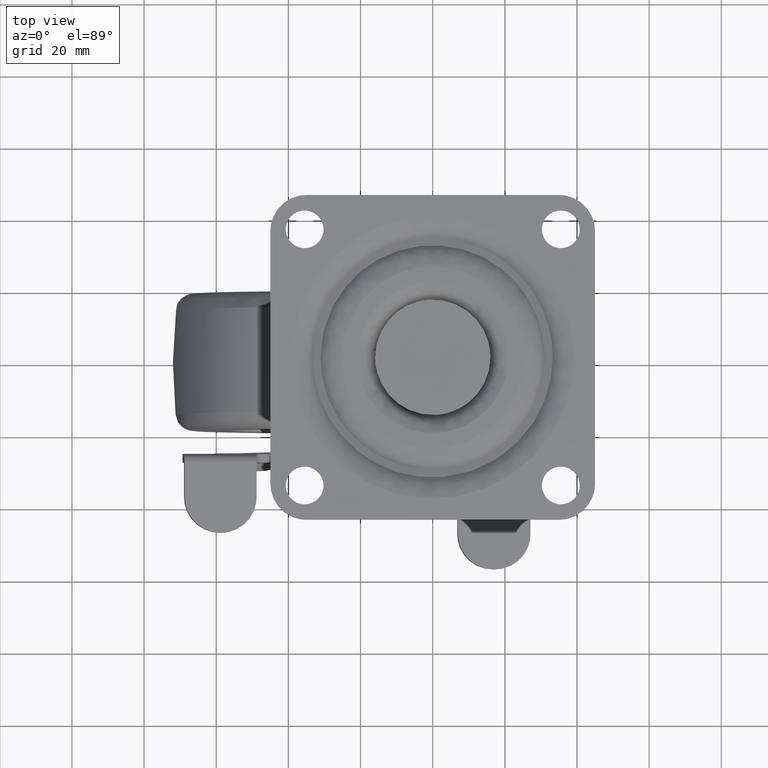
[diagram: clean part render]
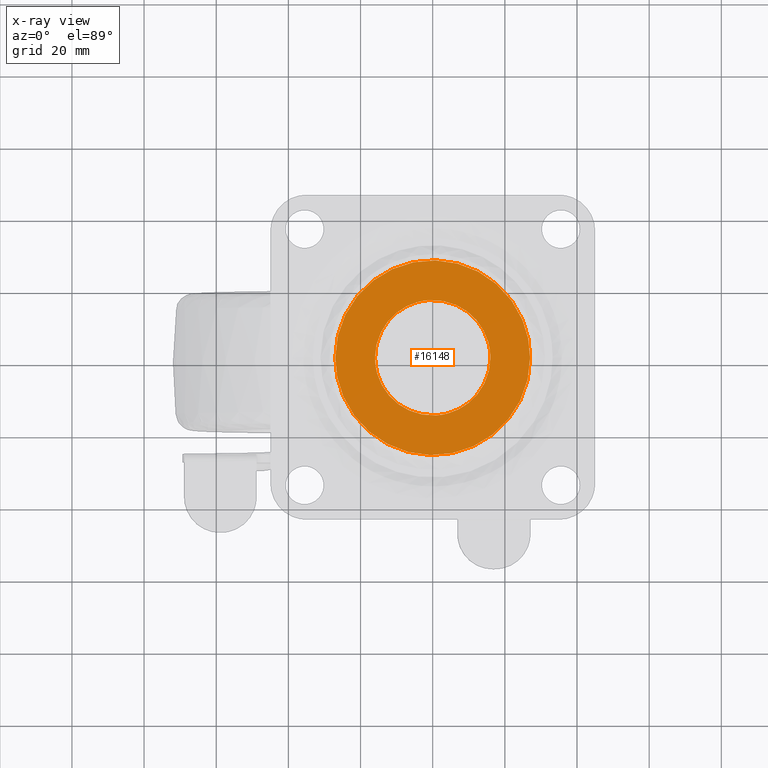
[diagram: x-ray — body ghosted, one internal face saturated and labeled with its STEP entity id]
A machine part, top view, then the same camera in x-ray: the body is ghosted and one INTERNAL B-rep face — a face not visible from any outside direction — is saturated and labeled: STEP entity #16148.
In plain terms, the highlighted face is a freeform B-spline surface patch.
Its self-contained STEP definition (entity closure, byte-faithful):
#15792=CARTESIAN_POINT('',(-0.976770151522309,15.970157171144340,-8.399999999999963));
#15793=VERTEX_POINT('',#15792);
#15794=CARTESIAN_POINT('',(16.0,0.0,-8.400000000000000));
#15795=VERTEX_POINT('',#15794);
#15796=CARTESIAN_POINT('',(-0.976770151522309,15.970157171144336,-8.399999999999961));
#15797=CARTESIAN_POINT('',(-0.488840963173646,15.999999999998701,-8.399999999999963));
#15798=CARTESIAN_POINT('',(7.832033E-014,15.999999999998719,-8.399999999999963));
#15799=CARTESIAN_POINT('',(16.000000000000039,15.999999999999376,-8.399999999999981));
#15800=CARTESIAN_POINT('',(16.0,0.0,-8.400000000000000));
#15808=(BOUNDED_CURVE()B_SPLINE_CURVE(2,(#15796,#15797,#15798,#15799,#15800),.UNSPECIFIED.,.F.,.U.)B_SPLINE_CURVE_WITH_KNOTS((3,2,3),(0.239333032265195,0.250000000000000,0.500000000000000),.UNSPECIFIED.)CURVE()GEOMETRIC_REPRESENTATION_ITEM()RATIONAL_B_SPLINE_CURVE((0.976072191746352,0.987502869940695,1.0,0.707106781186548,1.0))REPRESENTATION_ITEM(''));
#15809=EDGE_CURVE('',#15793,#15795,#15808,.T.);
#15818=CARTESIAN_POINT('',(0.976770151522307,-15.970157171144340,-8.399999999999963));
#15819=VERTEX_POINT('',#15818);
#15825=CARTESIAN_POINT('',(16.0,0.0,-8.400000000000000));
#15826=CARTESIAN_POINT('',(15.999999999999961,-15.051303190047920,-8.399999999999983));
#15827=CARTESIAN_POINT('',(0.976770151522307,-15.970157171144336,-8.399999999999961));
#15835=(BOUNDED_CURVE()B_SPLINE_CURVE(2,(#15825,#15826,#15827),.UNSPECIFIED.,.F.,.U.)B_SPLINE_CURVE_WITH_KNOTS((3,3),(0.500000000000000,0.739333032265195),.UNSPECIFIED.)CURVE()GEOMETRIC_REPRESENTATION_ITEM()RATIONAL_B_SPLINE_CURVE((1.0,0.719603911245852,0.976072191746352))REPRESENTATION_ITEM(''));
#15836=EDGE_CURVE('',#15795,#15819,#15835,.T.);
#15859=CARTESIAN_POINT('',(-16.0,0.0,-8.400000000000000));
#15860=VERTEX_POINT('',#15859);
#15861=CARTESIAN_POINT('',(-16.0,0.0,-8.400000000000000));
#15862=CARTESIAN_POINT('',(-15.999999999999961,15.051303190047920,-8.399999999999981));
#15863=CARTESIAN_POINT('',(-0.976770151522309,15.970157171144336,-8.399999999999961));
#15871=(BOUNDED_CURVE()B_SPLINE_CURVE(2,(#15861,#15862,#15863),.UNSPECIFIED.,.F.,.U.)B_SPLINE_CURVE_WITH_KNOTS((3,3),(0.0,0.239333032265195),.UNSPECIFIED.)CURVE()GEOMETRIC_REPRESENTATION_ITEM()RATIONAL_B_SPLINE_CURVE((1.0,0.719603911245852,0.976072191746352))REPRESENTATION_ITEM(''));
#15872=EDGE_CURVE('',#15860,#15793,#15871,.T.);
#15874=CARTESIAN_POINT('',(0.976770151522307,-15.970157171144336,-8.399999999999961));
#15875=CARTESIAN_POINT('',(0.488840963173643,-15.999999999998701,-8.399999999999965));
#15876=CARTESIAN_POINT('',(-8.262956E-014,-15.999999999998719,-8.399999999999965));
#15877=CARTESIAN_POINT('',(-16.000000000000039,-15.999999999999376,-8.399999999999984));
#15878=CARTESIAN_POINT('',(-16.0,0.0,-8.400000000000000));
#15886=(BOUNDED_CURVE()B_SPLINE_CURVE(2,(#15874,#15875,#15876,#15877,#15878),.UNSPECIFIED.,.F.,.U.)B_SPLINE_CURVE_WITH_KNOTS((3,2,3),(0.739333032265195,0.750000000000000,1.0),.UNSPECIFIED.)CURVE()GEOMETRIC_REPRESENTATION_ITEM()RATIONAL_B_SPLINE_CURVE((0.976072191746352,0.987502869940695,1.0,0.707106781186548,1.0))REPRESENTATION_ITEM(''));
#15887=EDGE_CURVE('',#15819,#15860,#15886,.T.);
#16074=CARTESIAN_POINT('',(29.697299897977100,-29.697299895337419,-8.400000000000000));
#16075=CARTESIAN_POINT('',(-29.697301346369979,-29.697299895337419,-8.400000000000000));
#16076=CARTESIAN_POINT('',(29.697299897977100,29.697301343730292,-8.400000000000000));
#16077=CARTESIAN_POINT('',(-29.697301346369979,29.697301343730292,-8.400000000000000));
#16078=B_SPLINE_SURFACE_WITH_KNOTS('',1,1,((#16074,#16076),(#16075,#16077)),.UNSPECIFIED.,.F.,.F.,.U.,(2,2),(2,2),(0.0,59.394601244347079),(0.0,59.394601239067718),.UNSPECIFIED.);
#16079=CARTESIAN_POINT('',(27.000000002399840,2.634884E-016,-8.400000000000002));
#16080=VERTEX_POINT('',#16079);
#16081=CARTESIAN_POINT('',(-27.000000002399840,-2.033979E-015,-8.400000000000000));
#16082=VERTEX_POINT('',#16081);
#16083=CARTESIAN_POINT('',(27.000000002399840,2.634884E-016,-8.400000000000002));
#16084=CARTESIAN_POINT('',(27.000569418302860,-2.153772751599406,-8.399999999999972));
#16085=CARTESIAN_POINT('',(26.641236941833618,-5.135552376579441,-8.400000000000036));
#16086=CARTESIAN_POINT('',(25.458558477725578,-9.167098785105946,-8.399999999999995));
#16087=CARTESIAN_POINT('',(24.125986567625599,-12.329452443410290,-8.399999999999972));
#16088=CARTESIAN_POINT('',(22.265682664172420,-15.411658271172939,-8.399999999999945));
#16089=CARTESIAN_POINT('',(20.192049049791159,-18.002465432469879,-8.400000000000075));
#16090=CARTESIAN_POINT('',(18.048053547758421,-20.159659535076880,-8.399999999999942));
#16091=CARTESIAN_POINT('',(15.283552752628010,-22.372365961069310,-8.400000000000151));
#16092=CARTESIAN_POINT('',(11.986070583710200,-24.307749087692741,-8.399999999999606));
#16093=CARTESIAN_POINT('',(8.542762584831015,-25.684672830146809,-8.400000000000166));
#16094=CARTESIAN_POINT('',(5.601295419668873,-26.459905992393399,-8.399999999999958));
#16095=CARTESIAN_POINT('',(2.488761590650223,-26.950977901239959,-8.400000000000013));
#16096=CARTESIAN_POINT('',(-1.384716472101695,-27.093781102789102,-8.399999999999997));
#16097=CARTESIAN_POINT('',(-5.509034072372763,-26.546580101472909,-8.400000000000004));
#16098=CARTESIAN_POINT('',(-8.903726238189130,-25.539268550842159,-8.400000000000002));
#16099=CARTESIAN_POINT('',(-11.766763828790360,-24.363701905156159,-8.400000000000008));
#16100=CARTESIAN_POINT('',(-14.341605576333251,-22.956816012104770,-8.400000000000006));
#16101=CARTESIAN_POINT('',(-17.036566203435608,-21.021398129444279,-8.399999999999995));
#16102=CARTESIAN_POINT('',(-19.660306891453288,-18.643506834038909,-8.400000000000002));
#16103=CARTESIAN_POINT('',(-22.483274110056939,-15.225442772085859,-8.399999999999997));
#16104=CARTESIAN_POINT('',(-24.636360433271530,-11.341798135847821,-8.400000000000008));
#16105=CARTESIAN_POINT('',(-25.866276336148250,-7.903521489809870,-8.399999999999995));
#16106=CARTESIAN_POINT('',(-26.741795638793850,-4.362528629513371,-8.400000000000013));
#16107=CARTESIAN_POINT('',(-27.000294317316548,-1.822395371740957,-8.400000000000002));
#16108=CARTESIAN_POINT('',(-27.000000002399840,-2.033979E-015,-8.400000000000000));
#16109=B_SPLINE_CURVE_WITH_KNOTS('',3,(#16083,#16084,#16085,#16086,#16087,#16088,#16089,#16090,#16091,#16092,#16093,#16094,#16095,#16096,#16097,#16098,#16099,#16100,#16101,#16102,#16103,#16104,#16105,#16106,#16107,#16108),.UNSPECIFIED.,.F.,.U.,(4,1,1,1,1,1,1,1,1,1,1,1,1,1,1,1,1,1,1,1,1,1,1,4),(0.000000187561540,6.461123293472355,8.946150882017307,12.590915745203301,16.732690627056002,19.714751696307150,22.531155624355929,25.844559445543261,30.317693807208869,33.962400951704282,36.944466432978452,39.429540167072929,43.405506570290036,48.541294604923657,51.854709058744341,54.008434440055687,57.818884121518387,60.635274210489911,63.948694016243863,68.421793652629617,73.888956068190225,77.202368412297176,79.356030126371252,84.823134713382188),.UNSPECIFIED.);
#16110=EDGE_CURVE('',#16080,#16082,#16109,.T.);
#16111=ORIENTED_EDGE('',*,*,#16110,.F.);
#16112=CARTESIAN_POINT('',(-27.000000002399840,-2.033979E-015,-8.400000000000000));
#16113=CARTESIAN_POINT('',(-27.000232349801198,1.767150000227796,-8.400000000000008));
#16114=CARTESIAN_POINT('',(-26.673523531897420,5.080441839085524,-8.399999999999951));
#16115=CARTESIAN_POINT('',(-25.515737614976850,9.072991871272361,-8.400000000000070));
#16116=CARTESIAN_POINT('',(-24.069561112279011,12.362466325808020,-8.399999999999938));
#16117=CARTESIAN_POINT('',(-22.425255985955300,15.183908837953130,-8.400000000000036));
#16118=CARTESIAN_POINT('',(-20.450156339293741,17.714678499920709,-8.400000000000022));
#16119=CARTESIAN_POINT('',(-18.056830569460399,20.167533579921852,-8.399999999999936));
#16120=CARTESIAN_POINT('',(-15.288716714812249,22.383058610232389,-8.400000000000279));
#16121=CARTESIAN_POINT('',(-11.975889371140241,24.286583946496879,-8.399999999999739));
#16122=CARTESIAN_POINT('',(-8.393893104468567,25.757486660117841,-8.400000000000235));
#16123=CARTESIAN_POINT('',(-4.956435655959487,26.629748691620801,-8.399999999999814));
#16124=CARTESIAN_POINT('',(-1.658213473580339,26.995393090663772,-8.400000000000155));
#16125=CARTESIAN_POINT('',(1.492668080146264,27.024454115817900,-8.399999999999944));
#16126=CARTESIAN_POINT('',(4.849839354291383,26.652171147461921,-8.400000000000029));
#16127=CARTESIAN_POINT('',(8.924045977329916,25.605154071778720,-8.399999999999752));
#16128=CARTESIAN_POINT('',(12.533419751625180,24.031602329858831,-8.400000000000892));
#16129=CARTESIAN_POINT('',(16.185839718040810,21.734394169953919,-8.399999999997968));
#16130=CARTESIAN_POINT('',(19.258621790131681,19.100284328232259,-8.400000000000409));
#16131=CARTESIAN_POINT('',(22.243054675132399,15.531163956705671,-8.400000000000171));
#16132=CARTESIAN_POINT('',(24.253696590877890,12.081420411363410,-8.399999999999835));
#16133=CARTESIAN_POINT('',(25.536317680786379,8.901837023044710,-8.400000000000031));
#16134=CARTESIAN_POINT('',(26.641270447745239,5.135553828674822,-8.399999999999995));
#16135=CARTESIAN_POINT('',(27.000548417330322,2.153752222955396,-8.400000000000006));
#16136=CARTESIAN_POINT('',(27.000000002399840,2.634884E-016,-8.400000000000002));
#16137=B_SPLINE_CURVE_WITH_KNOTS('',3,(#16112,#16113,#16114,#16115,#16116,#16117,#16118,#16119,#16120,#16121,#16122,#16123,#16124,#16125,#16126,#16127,#16128,#16129,#16130,#16131,#16132,#16133,#16134,#16135,#16136),.UNSPECIFIED.,.F.,.U.,(4,1,1,1,1,1,1,1,1,1,1,1,1,1,1,1,1,1,1,1,1,1,4),(0.000000187519746,5.301403614077344,9.940165527550278,12.425220590436350,16.069987510388540,19.714751696283241,22.034142476469629,26.341573761219479,30.317693807191670,33.465414448986763,37.938546319911723,40.920542602818983,43.405506570279151,47.381601452704778,51.026409500517438,55.996483137167701,59.144237207597712,63.948694016242477,68.090470796864977,73.060567722073046,75.876958969368047,78.362060522160718,84.823134713382331),.UNSPECIFIED.);
#16138=EDGE_CURVE('',#16082,#16080,#16137,.T.);
#16139=ORIENTED_EDGE('',*,*,#16138,.F.);
#16140=EDGE_LOOP('',(#16111,#16139));
#16141=FACE_OUTER_BOUND('',#16140,.T.);
#16142=ORIENTED_EDGE('',*,*,#15836,.T.);
#16143=ORIENTED_EDGE('',*,*,#15887,.T.);
#16144=ORIENTED_EDGE('',*,*,#15872,.T.);
#16145=ORIENTED_EDGE('',*,*,#15809,.T.);
#16146=EDGE_LOOP('',(#16142,#16143,#16144,#16145));
#16147=FACE_BOUND('',#16146,.T.);
#16148=ADVANCED_FACE('',(#16141,#16147),#16078,.F.);